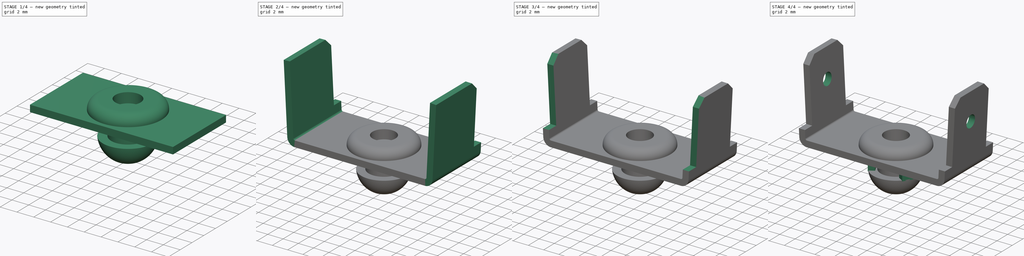
[diagram: build sequence overview — one tinted view per stage of 4, left to right]
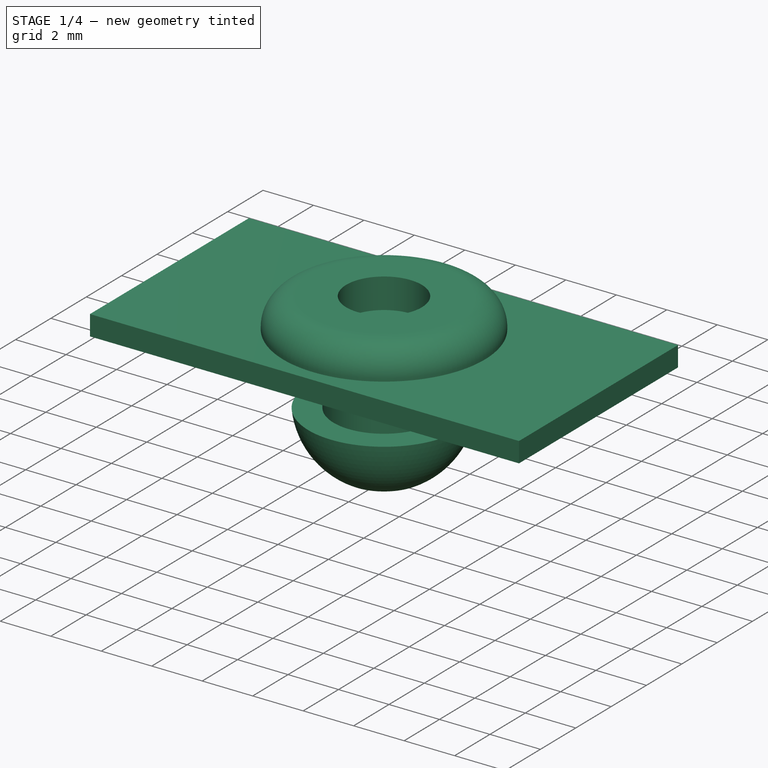
[diagram: stage 1 of 4 — iso view after this stage's code; geometry added in this stage tinted green]
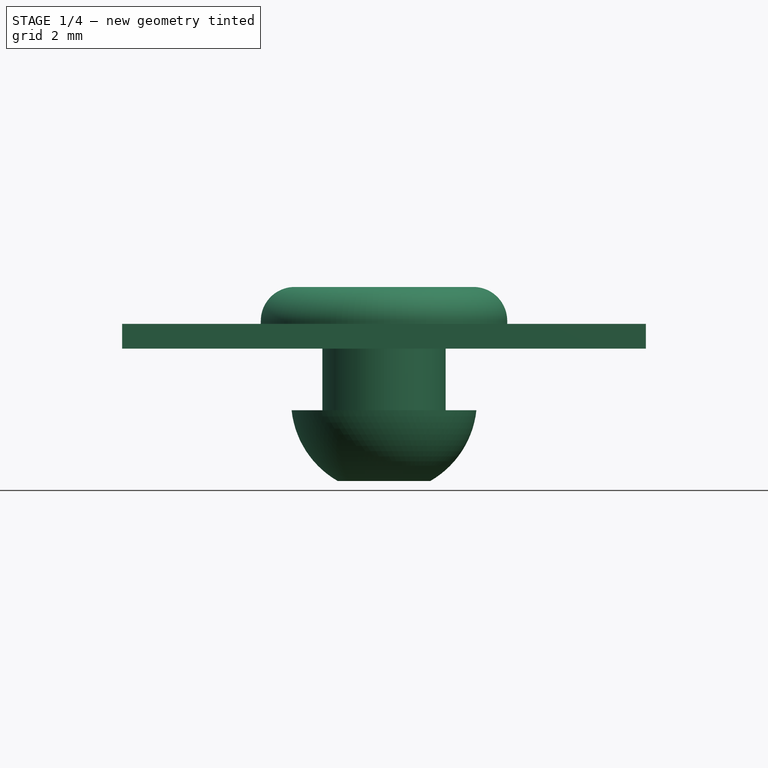
[diagram: stage 1 of 4 — front view after this stage's code; geometry added in this stage tinted green]
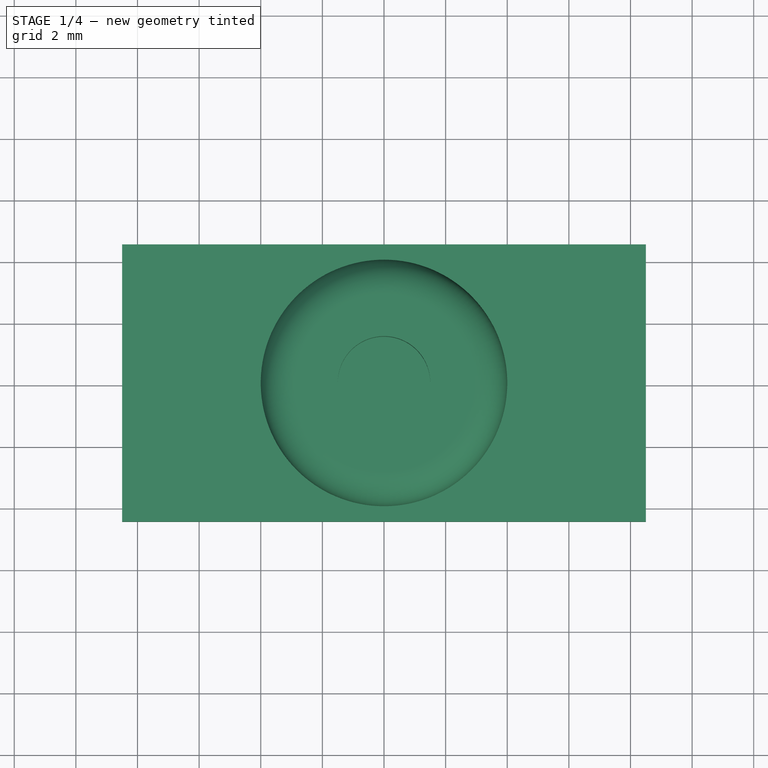
[diagram: stage 1 of 4 — top view after this stage's code; geometry added in this stage tinted green]
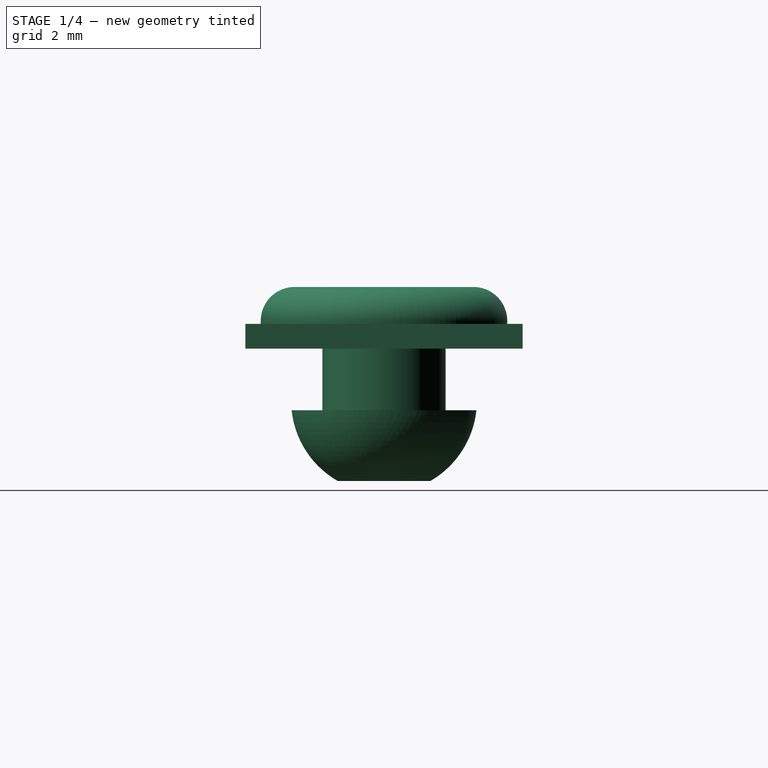
[diagram: stage 1 of 4 — right view after this stage's code; geometry added in this stage tinted green]
FCSTD DOCUMENT  (FreeCAD 0.18R16110 (Git))
Label: RIV236_v2
License: All rights reserved
LicenseURL: http://en.wikipedia.org/wiki/All_rights_reserved
objects: Sketcher::SketchObject×6, PartDesign::FeaturePython×3, PartDesign::Pad×2, PartDesign::Pocket×2, PartDesign::Body×2, PartDesign::Plane×1, PartDesign::Mirrored×1, PartDesign::Hole×1, PartDesign::PolarPattern×1, Spreadsheet::Sheet×1, PartDesign::Revolution×1, PartDesign::Fillet×1
note: 27 computed .brp shape members not serialized (recipe doc carries the construction recipe); baked Part::Feature solids carry a one-line shape summary decoded from their .brp

FEATURE [Sketcher::SketchObject] Sketch
  MapMode = 5
  Support = -> [XY_Plane]
  sketch-geometry (6):
    g0: LineSegment [constr] StartX=0 StartY=-7.90044 StartZ=0 EndX=0 EndY=8.72675 EndZ=0
    g1: LineSegment [constr] StartX=-13.6728 StartY=0 StartZ=0 EndX=13.7629 EndY=0 EndZ=0
    g2: LineSegment StartX=-8.5 StartY=4.5 StartZ=0 EndX=8.5 EndY=4.5 EndZ=0
    g3: LineSegment StartX=8.5 StartY=4.5 StartZ=0 EndX=8.5 EndY=-4.5 EndZ=0
    g4: LineSegment StartX=8.5 StartY=-4.5 StartZ=0 EndX=-8.5 EndY=-4.5 EndZ=0
    g5: LineSegment StartX=-8.5 StartY=-4.5 StartZ=0 EndX=-8.5 EndY=4.5 EndZ=0
  constraints (14):
    c: PointOnObject(g0,g-2)
    c: PointOnObject(g0,g-2)
    c: PointOnObject(g1,g-1)
    c: Horizontal(g1)
    c: Coincident(g2,g3)
    c: Coincident(g3,g4)
    c: Coincident(g4,g5)
    c: Coincident(g5,g2)
    c: Horizontal(g4)
    c: Vertical(g5)
    c: Symmetric(g2,g3,g1)
    c: Symmetric(g2,g2,g0)
    c: DistanceX(g2,g2) = 17
    c: DistanceY(g3,g2) = 9
FEATURE [PartDesign::Pad] Pad
  Length = 0.8
  Length2 = 100
  Profile = -> Sketch
  Type = 0
FEATURE [PartDesign::Body] Body
  Group = -> [Sketch,Pad,Bend,Bend001,DatumPlane,Sketch001,Pocket,Mirrored,Sketch002,Hole,Sketch003,Pad001,PolarPattern,Bend002,Sketch004,Pocket001]
  Origin = -> Origin
  Tip = -> Pocket001
FEATURE [Spreadsheet::Sheet] Spreadsheet
  cells = A1=Niete wird noch benötigt; B1=4x8 mm niete z.B. ; B2=https://www.conrad.ch/de/p/bralo-s1010004008-blindniete-x-l-4-mm-x-8-mm-stahl-aluminium-50-st-478006.html?WT.srch=1&gclid=Cj0KCQjw_absBRD1ARIsAO4_D3sxMEFqY7L4o7KO3YXt_xJqZRxvimekoAm6KLAQDPoylGz97Le6vMcaAocMEALw_wcB&utm_campaign=shopping-online-de&utm_content=shopping-ad_cpc&utm_medium=search&utm_source=google-shopping-de; C2=in Kupfer Variante.
FEATURE [Sketcher::SketchObject] Sketch005
  MapMode = 5
  Placement = pos=(0,0,0) rot=(0.57735,0.57735,0.57735;2.0944rad)
  Support = -> [YZ_Plane001]
  sketch-geometry (7):
    g0: LineSegment StartX=2 StartY=0.8 StartZ=0 EndX=2 EndY=-2 EndZ=0
    g1: LineSegment StartX=2 StartY=-2 StartZ=0 EndX=3 EndY=-2 EndZ=0
    g2: ArcOfCircle CenterX=0 CenterY=-1.68261 CenterZ=0 NormalX=0 NormalY=0 NormalZ=1 AngleXU=0 Radius=3.01674 StartAngle=5.23279 EndAngle=6.17778
    g3: LineSegment StartX=1.5 StartY=-4.3 StartZ=0 EndX=1.5 EndY=2 EndZ=0
    g4: LineSegment StartX=1.5 StartY=2 StartZ=0 EndX=4 EndY=2 EndZ=0
    g5: LineSegment StartX=4 StartY=2 StartZ=0 EndX=4 EndY=0.8 EndZ=0
    g6: LineSegment StartX=4 StartY=0.8 StartZ=0 EndX=2 EndY=0.8 EndZ=0
  constraints (22):
    c: Vertical(g0)
    c: Coincident(g1,g0)
    c: Horizontal(g1)
    c: Coincident(g2,g1)
    c: DistanceX(g2,g1) = 3
    c: DistanceX(g2,g0) = 2
    c: PointOnObject(g2,g-2)
    c: DistanceY(g1,g-1) = 2
    c: Coincident(g3,g2)
    c: Vertical(g3)
    c: Coincident(g4,g3)
    c: Horizontal(g4)
    c: Coincident(g5,g4)
    c: Vertical(g5)
    c: Coincident(g6,g5)
    c: Horizontal(g6)
    c: Coincident(g6,g0)
    c: DistanceY(g-1,g3) = 2
    c: DistanceX(g-1,g3) = 1.5
    c: DistanceX(g-1,g4) = 4
    c: DistanceY(g-1,g5) = 0.8
    c: DistanceY(g2,g1) = 2.3
FEATURE [PartDesign::Revolution] Revolution
  Angle = 360
  Axis = (-2e-16,3e-16,1)
  Base = (0,0,0)
  Placement = pos=(0,0,0) rot=(0.57735,0.57735,0.57735;2.0944rad)
  Profile = -> Sketch005
  ReferenceAxis = -> Sketch005 [V_Axis]
  Reversed = true
FEATURE [PartDesign::Fillet] Fillet
  Base = -> Revolution [Edge9]
  BaseFeature = -> Revolution
  Placement = pos=(0,0,0) rot=(0.57735,0.57735,0.57735;2.0944rad)
  Radius = 1.1
FEATURE [PartDesign::Body] Body001  label="Niete"
  Group = -> [Sketch005,Revolution,Fillet]
  Origin = -> Origin001
  Tip = -> Fillet
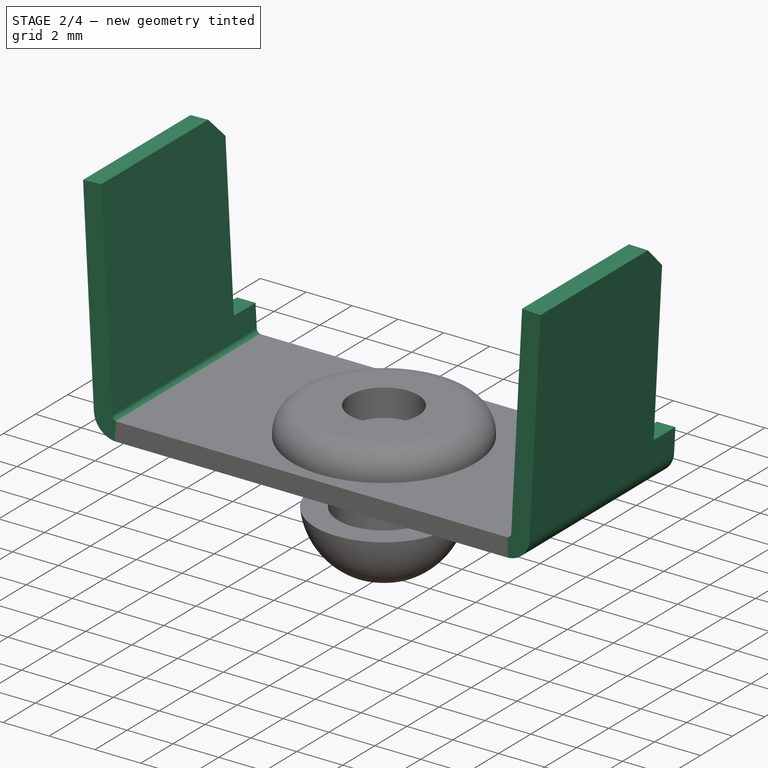
[diagram: stage 2 of 4 — iso view after this stage's code; geometry added in this stage tinted green]
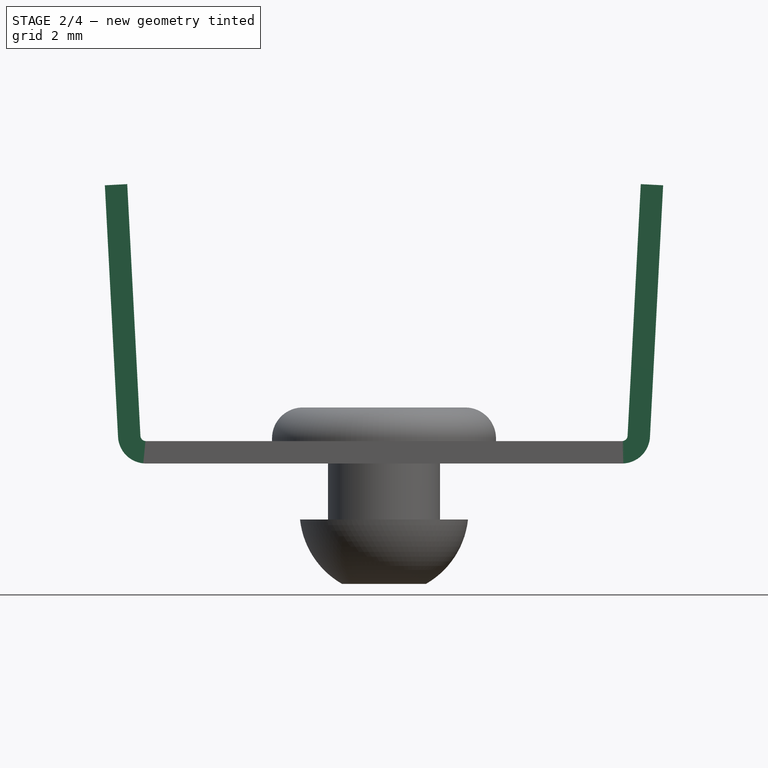
[diagram: stage 2 of 4 — front view after this stage's code; geometry added in this stage tinted green]
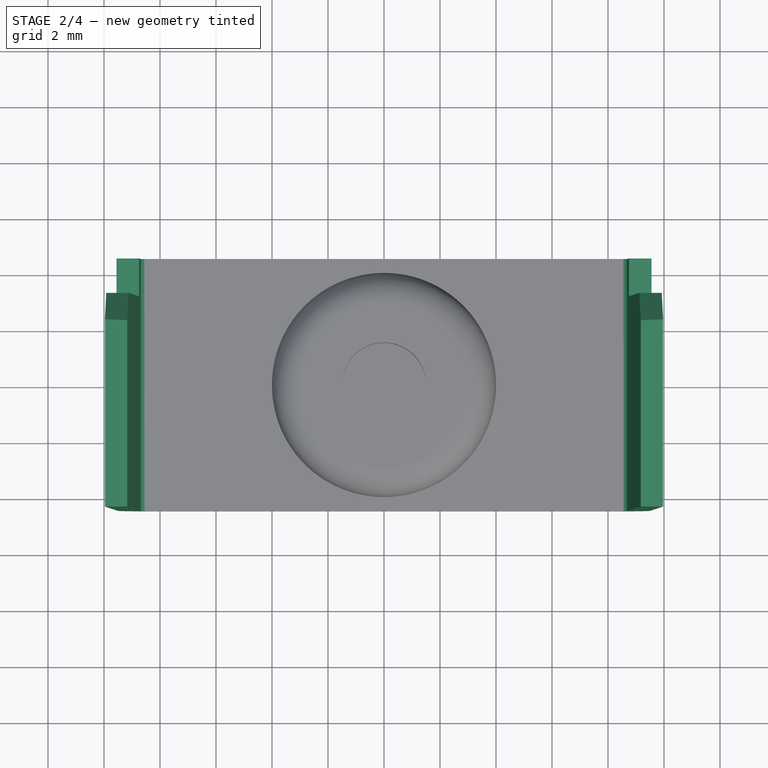
[diagram: stage 2 of 4 — top view after this stage's code; geometry added in this stage tinted green]
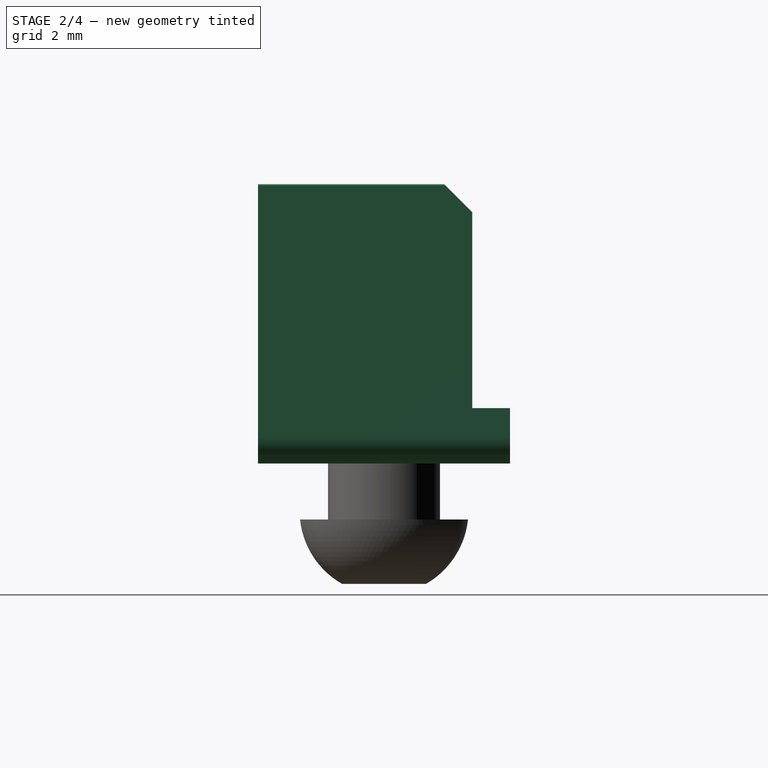
[diagram: stage 2 of 4 — right view after this stage's code; geometry added in this stage tinted green]
FEATURE [PartDesign::FeaturePython] Bend  # WARN: FeaturePython — macro-defined, semantics opaque (R4)
  AutoMiter = true
  BaseFeature = -> Pad
  BendType = 0
  LengthList = [9]
  ReliefFactor = 0.7
  UseReliefFactor = false
  angle = 87
  baseObject = -> Pad [Face2]
  bendAList = [87]
  extend1 = 0
  extend2 = 0
  gap1 = 0
  gap2 = 0
  invert = false
  kfactor = 0.5
  length = 9
  miterangle1 = 0
  miterangle2 = 0
  offset = 0
  radius = 0.2
  reliefType = 0
  reliefd = 1
  reliefw = 0.8
  sketchflip = false
  sketchinvert = false
  unfold = false
FEATURE [PartDesign::FeaturePython] Bend001  # WARN: FeaturePython — macro-defined, semantics opaque (R4)
  AutoMiter = true
  BaseFeature = -> Bend
  BendType = 0
  LengthList = [9]
  ReliefFactor = 0.7
  UseReliefFactor = false
  angle = 87
  baseObject = -> Bend [Face13]
  bendAList = [87]
  extend1 = 0
  extend2 = 0
  gap1 = 0
  gap2 = 0
  invert = false
  kfactor = 0.5
  length = 9
  miterangle1 = 0
  miterangle2 = 0
  offset = 0
  radius = 0.2
  reliefType = 0
  reliefd = 1
  reliefw = 0.8
  sketchflip = false
  sketchinvert = false
  unfold = false
FEATURE [PartDesign::Plane] DatumPlane
  Length = 24
  MapMode = 13
  Placement = pos=(8.5,1.5,0.533333) rot=(0.57735,-0.57735,-0.57735;2.0944rad)
  ResizeMode = 0
  Support = -> [Bend001]
  Width = 24
FEATURE [Sketcher::SketchObject] Sketch001
  ExternalGeometry = -> [Bend001]
  MapMode = 5
  Placement = pos=(8.5,1.5,0.533333) rot=(0.57735,-0.57735,-0.57735;2.0944rad)
  Support = -> [DatumPlane]
  sketch-geometry (8):
    g0: LineSegment [constr] StartX=1.5 StartY=14.8571 StartZ=0 EndX=1.5 EndY=-4.2501 EndZ=0
    g1: LineSegment StartX=-1.65 StartY=1.44387 StartZ=0 EndX=-5.76319 EndY=1.44387 EndZ=0
    g2: LineSegment StartX=-5.76319 StartY=1.44387 StartZ=0 EndX=-5.76319 EndY=12.6268 EndZ=0
    g3: LineSegment StartX=-5.76319 StartY=12.6268 StartZ=0 EndX=1.5 EndY=12.6268 EndZ=0
    g4: LineSegment StartX=1.5 StartY=12.6268 StartZ=0 EndX=1.5 EndY=9.44387 EndZ=0
    g5: LineSegment StartX=1.5 StartY=9.44387 StartZ=0 EndX=-0.65 EndY=9.44387 EndZ=0
    g6: LineSegment StartX=-0.65 StartY=9.44387 StartZ=0 EndX=-1.65 EndY=8.44387 EndZ=0
    g7: LineSegment StartX=-1.65 StartY=8.44387 StartZ=0 EndX=-1.65 EndY=1.44387 EndZ=0
  constraints (20):
    c: Symmetric(g-5,g-4,g0)
    c: Horizontal(g1)
    c: Coincident(g2,g1)
    c: Vertical(g2)
    c: Coincident(g3,g2)
    c: PointOnObject(g3,g0)
    c: Horizontal(g3)
    c: Coincident(g4,g3)
    c: Vertical(g4)
    c: Coincident(g5,g4)
    c: PointOnObject(g5,g-3)
    c: Horizontal(g5)
    c: Coincident(g6,g5)
    c: Coincident(g7,g1)
    c: Vertical(g7)
    c: Angle(g7,g6) = 2.35619
    c: Coincident(g6,g7)
    c: DistanceX(g6,g3) = 3.15
    c: DistanceY(g6,g4) = 1
    c: DistanceY(g1,g5) = 8
FEATURE [PartDesign::Pocket] Pocket
  BaseFeature = -> Bend001
  Length = 5
  Length2 = 100
  Midplane = true
  Profile = -> Sketch001
  Reversed = true
  Type = 1
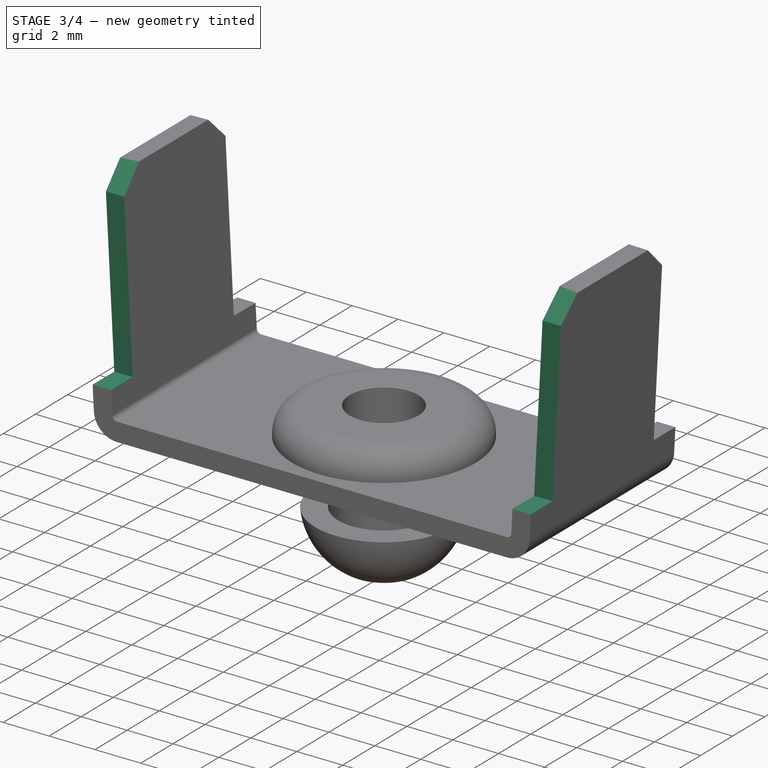
[diagram: stage 3 of 4 — iso view after this stage's code; geometry added in this stage tinted green]
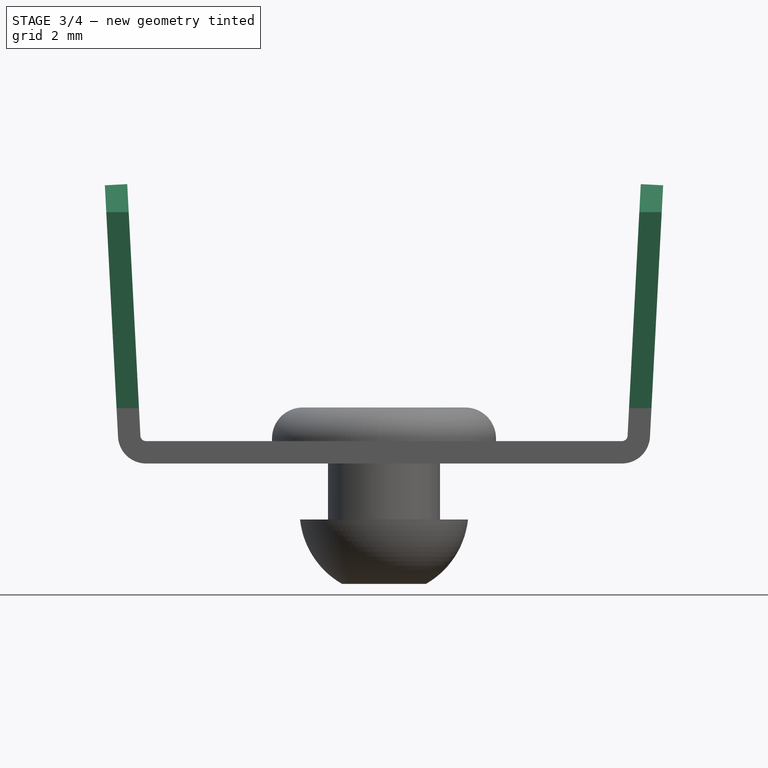
[diagram: stage 3 of 4 — front view after this stage's code; geometry added in this stage tinted green]
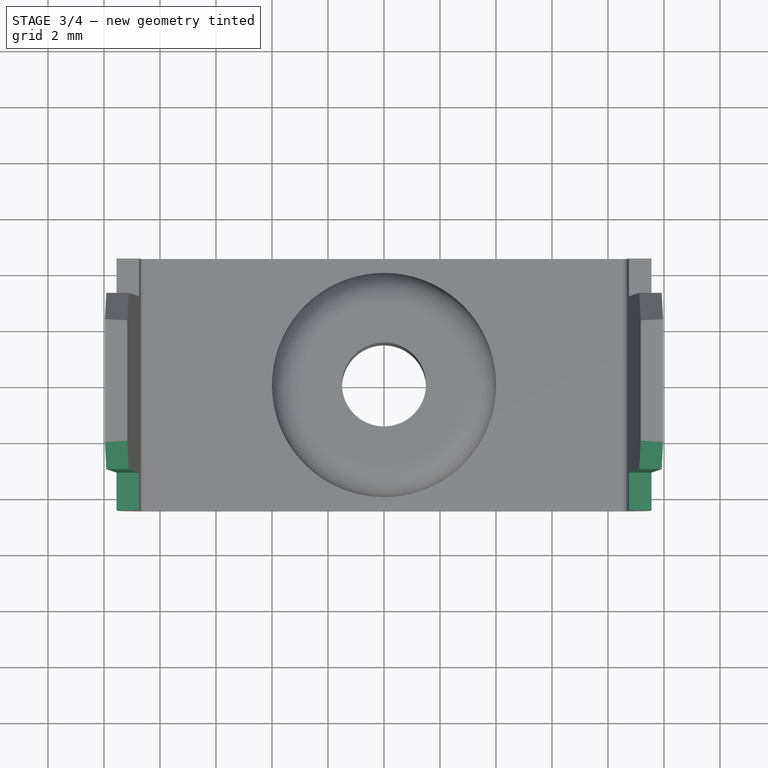
[diagram: stage 3 of 4 — top view after this stage's code; geometry added in this stage tinted green]
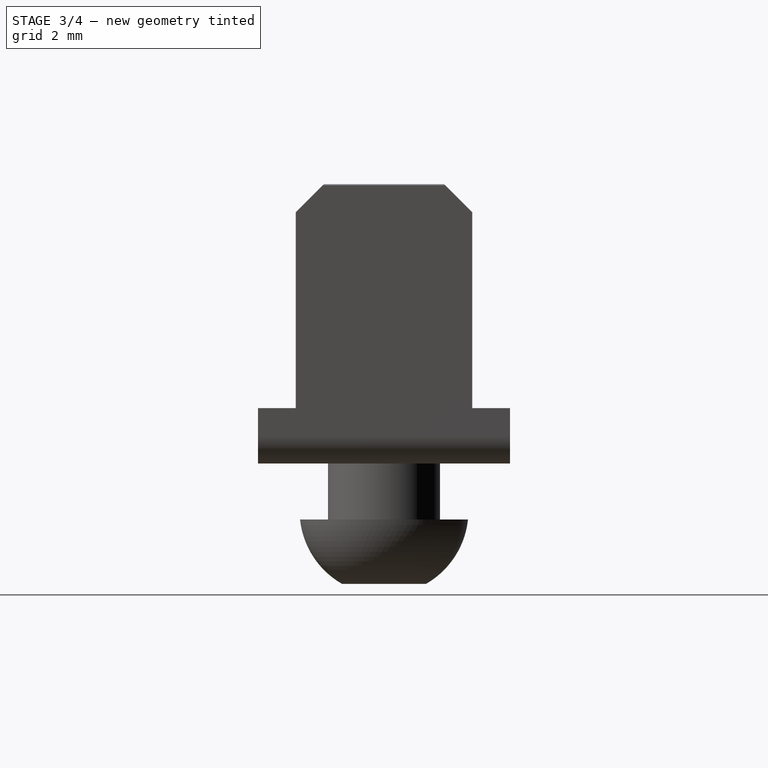
[diagram: stage 3 of 4 — right view after this stage's code; geometry added in this stage tinted green]
FEATURE [PartDesign::Mirrored] Mirrored
  BaseFeature = -> Pocket
  MirrorPlane = -> XZ_Plane
  Originals = -> [Pocket]
FEATURE [Sketcher::SketchObject] Sketch002
  MapMode = 5
  Placement = pos=(0,0,0.8) rot=(0,0,1;0rad)
  Support = -> [Mirrored]
  sketch-geometry (1):
    g0: Circle CenterX=0 CenterY=0 CenterZ=0 NormalX=0 NormalY=0 NormalZ=1 AngleXU=0 Radius=2.22263
  constraints (1):
    c: Coincident(g0,g-1)
FEATURE [PartDesign::Hole] Hole
  BaseFeature = -> Mirrored
  Depth = 25
  DepthType = 0
  Diameter = 6.3
  DrillPoint = 1
  DrillPointAngle = 118
  HoleCutCountersinkAngle = 90
  HoleCutDepth = 0
  HoleCutDiameter = 0
  HoleCutType = 0
  ModelActualThread = false
  Profile = -> Sketch002
  Tapered = false
  TaperedAngle = 90
  ThreadAngle = 0
  ThreadClass = 0
  ThreadCutOffInner = 0
  ThreadCutOffOuter = 0
  ThreadDirection = 0
  ThreadFit = 0
  ThreadPitch = 0
  ThreadSize = 0
  ThreadType = 0
  Threaded = false
FEATURE [Sketcher::SketchObject] Sketch003
  ExternalGeometry = -> [Hole]
  MapMode = 5
  Placement = pos=(0,0,0.8) rot=(0,0,1;0rad)
  Support = -> [Hole]
  sketch-geometry (4):
    g0: LineSegment StartX=-0.65 StartY=4.5 StartZ=0 EndX=0.65 EndY=4.5 EndZ=0
    g1: LineSegment StartX=0.65 StartY=4.5 StartZ=0 EndX=0.65 EndY=3.08221 EndZ=0
    g2: LineSegment StartX=0.65 StartY=3.08221 StartZ=0 EndX=-0.65 EndY=3.08221 EndZ=0
    g3: LineSegment StartX=-0.65 StartY=3.08221 StartZ=0 EndX=-0.65 EndY=4.5 EndZ=0
  constraints (11):
    c: Coincident(g0,g1)
    c: Coincident(g1,g2)
    c: Coincident(g2,g3)
    c: Coincident(g3,g0)
    c: Horizontal(g2)
    c: Vertical(g1)
    c: Vertical(g3)
    c: Symmetric(g0,g0,g-2)
    c: DistanceX(g0,g0) = 1.3
    c: PointOnObject(g1,g-3)
    c: PointOnObject(g0,g-4)
FEATURE [PartDesign::Pad] Pad001
  BaseFeature = -> Hole
  Length = 10
  Length2 = 100
  Profile = -> Sketch003
  Type = 3
  UpToFace = -> Hole [Face17]
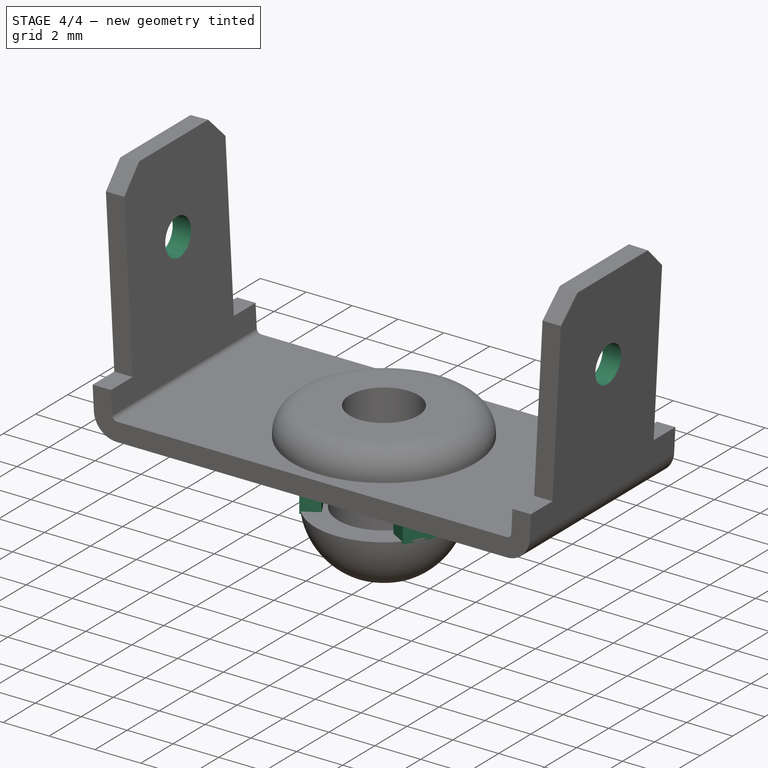
[diagram: stage 4 of 4 — iso view after this stage's code; geometry added in this stage tinted green]
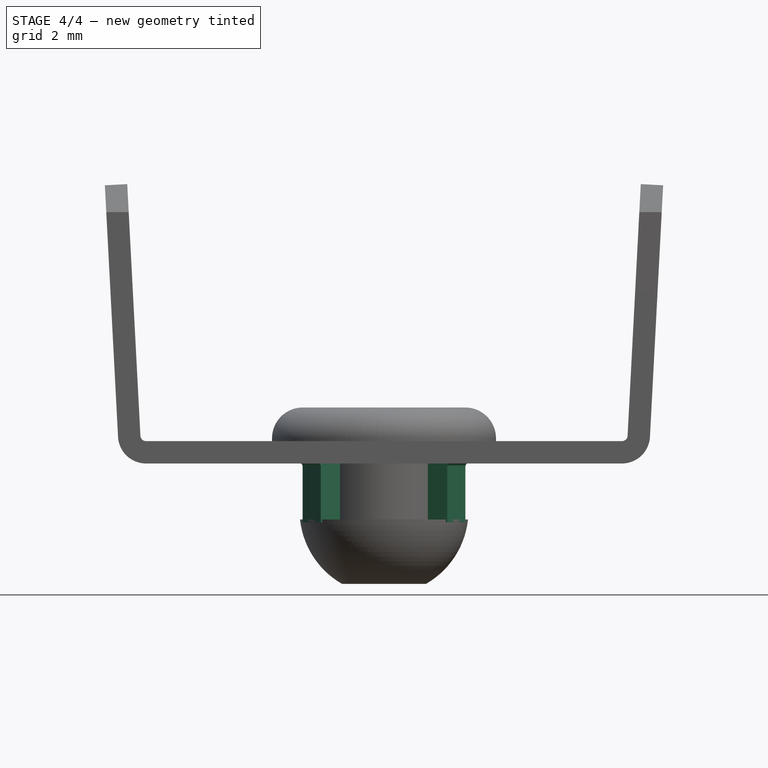
[diagram: stage 4 of 4 — front view after this stage's code; geometry added in this stage tinted green]
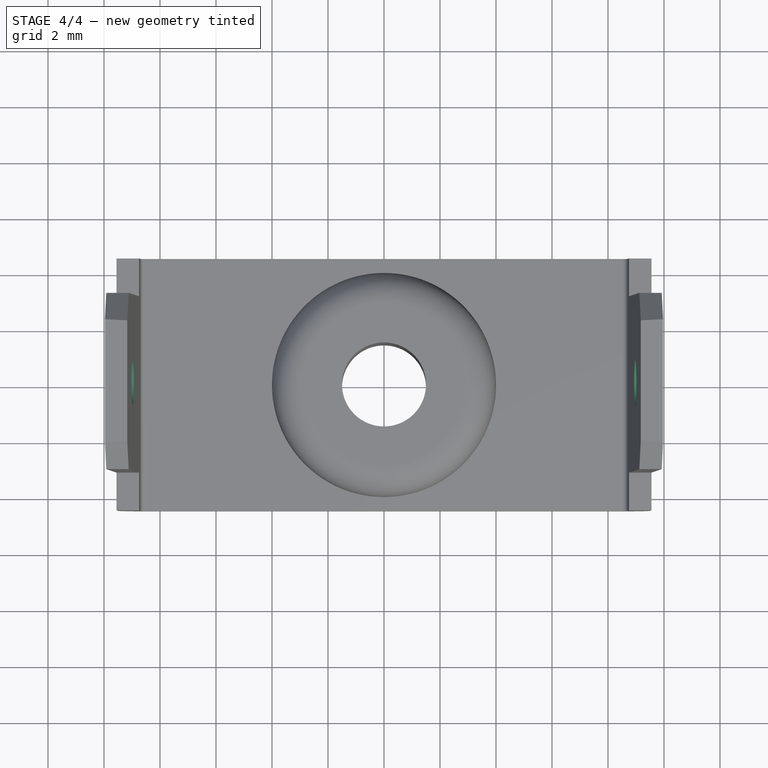
[diagram: stage 4 of 4 — top view after this stage's code; geometry added in this stage tinted green]
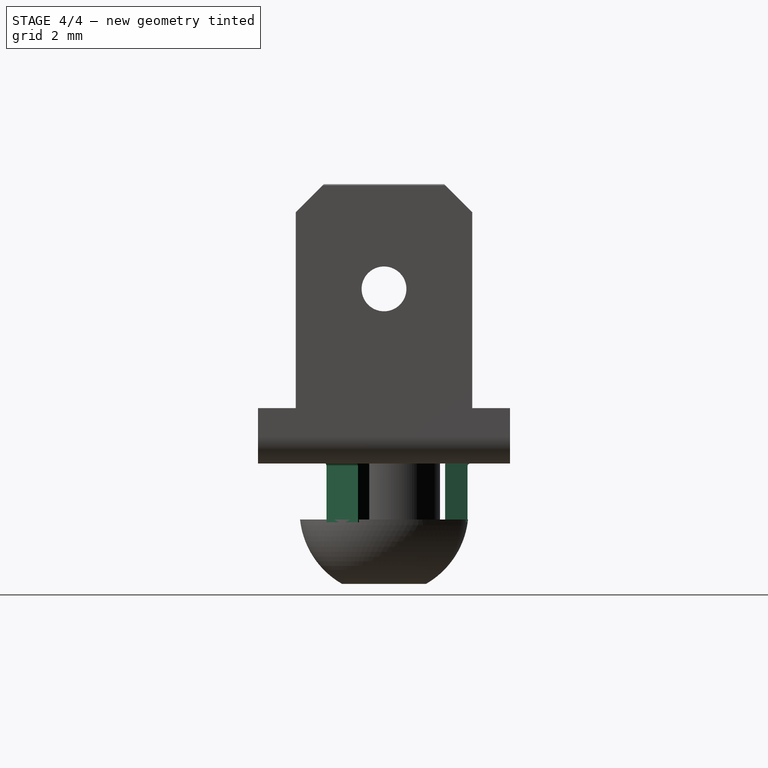
[diagram: stage 4 of 4 — right view after this stage's code; geometry added in this stage tinted green]
FEATURE [PartDesign::PolarPattern] PolarPattern
  Angle = 360
  Axis = -> Sketch003 [N_Axis]
  BaseFeature = -> Pad001
  Occurrences = 3
  Originals = -> [Pad001]
FEATURE [PartDesign::FeaturePython] Bend002  # WARN: FeaturePython — macro-defined, semantics opaque (R4)
  AutoMiter = true
  BaseFeature = -> PolarPattern
  BendType = 0
  LengthList = [2]
  ReliefFactor = 0.7
  UseReliefFactor = false
  angle = 90
  baseObject = -> PolarPattern [Face42,Face39,Face40]
  bendAList = [90]
  extend1 = 0
  extend2 = 0
  gap1 = 0
  gap2 = 0
  invert = false
  kfactor = 0.5
  length = 2
  miterangle1 = 0
  miterangle2 = 0
  offset = 0
  radius = 0.1
  reliefType = 0
  reliefd = 1
  reliefw = 0.8
  sketchflip = false
  sketchinvert = false
  unfold = false
FEATURE [Sketcher::SketchObject] Sketch004
  ExternalGeometry = -> [Bend002]
  MapMode = 5
  Placement = pos=(8.5,1.5,0.533333) rot=(0.57735,-0.57735,-0.57735;2.0944rad)
  Support = -> [DatumPlane]
  sketch-geometry (2):
    g0: LineSegment [constr] StartX=1.5 StartY=11.428 StartZ=0 EndX=1.5 EndY=4.03236 EndZ=0
    g1: Circle CenterX=1.5 CenterY=5.702 CenterZ=0 NormalX=0 NormalY=0 NormalZ=1 AngleXU=0 Radius=0.8
  constraints (4):
    c: Symmetric(g-3,g-3,g0)
    c: PointOnObject(g1,g0)
    c: DistanceY(g1,g-3) = 3.7
    c: Diameter(g1) = 1.6
FEATURE [PartDesign::Pocket] Pocket001
  BaseFeature = -> Bend002
  Length = 5
  Length2 = 100
  Midplane = true
  Profile = -> Sketch004
  Type = 1
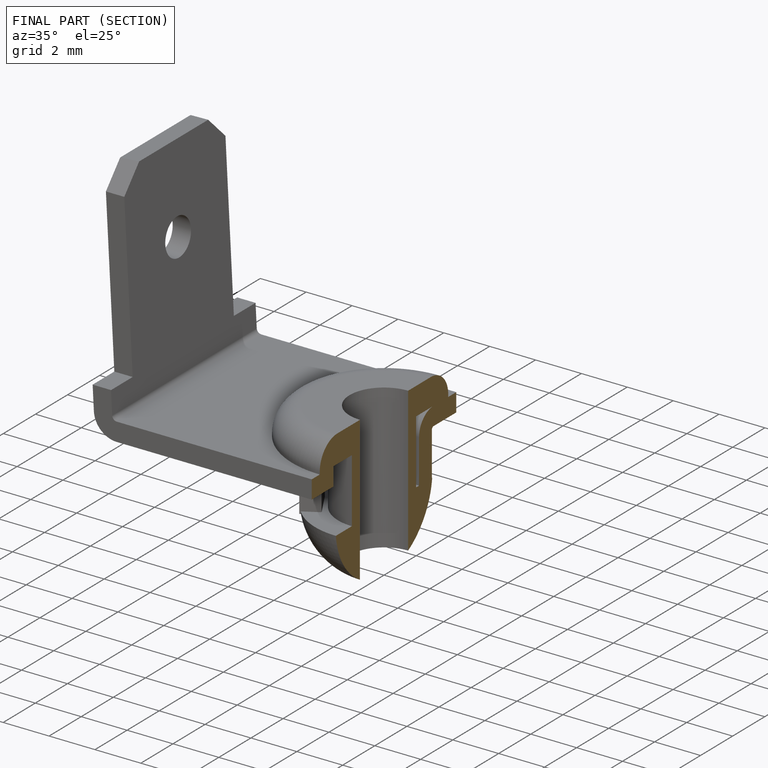
[diagram: finished part — half-section view (interior)]
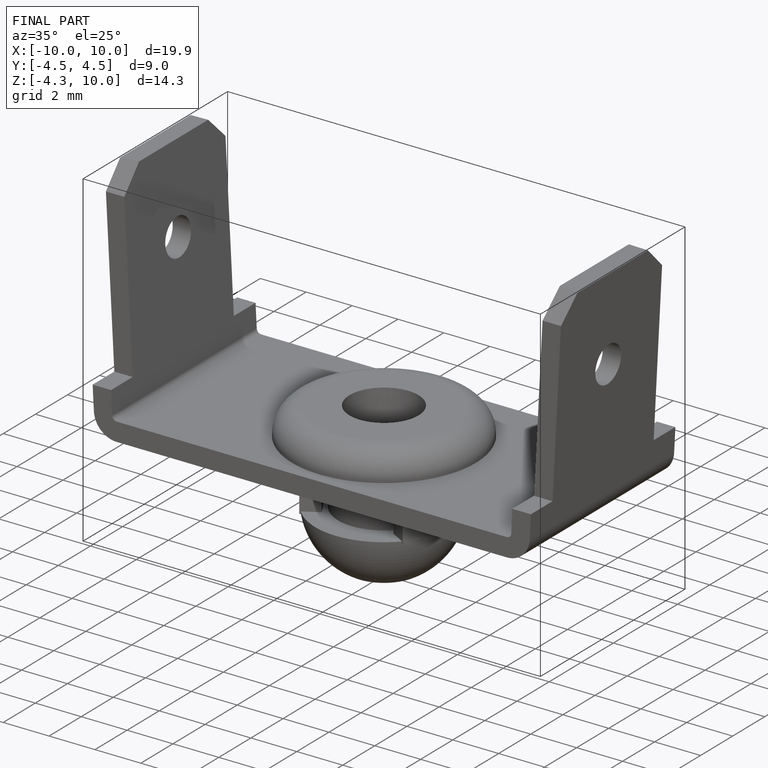
[diagram: finished part — iso view with bounding-box wireframe]
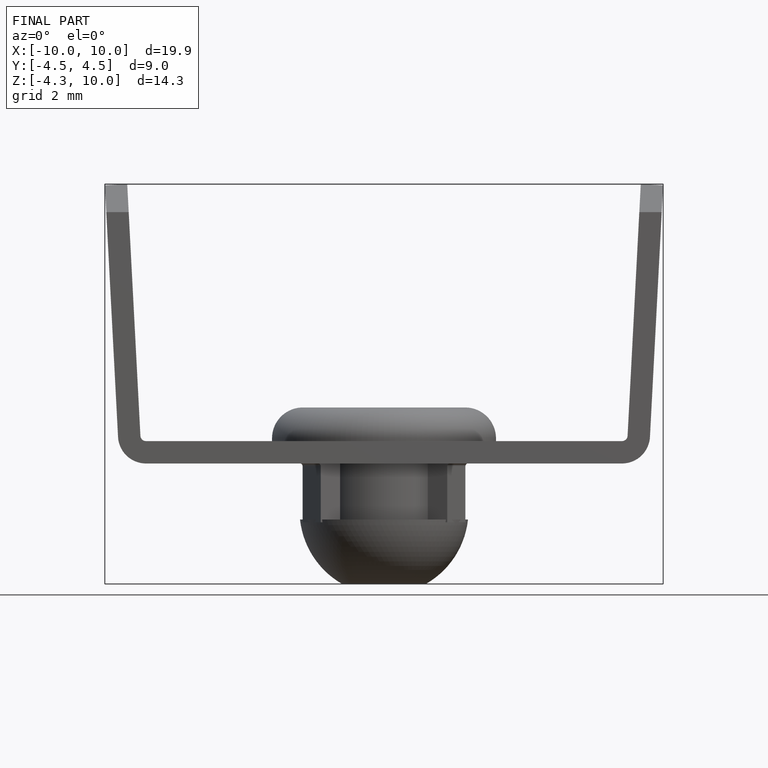
[diagram: finished part — front view with bounding-box wireframe]
